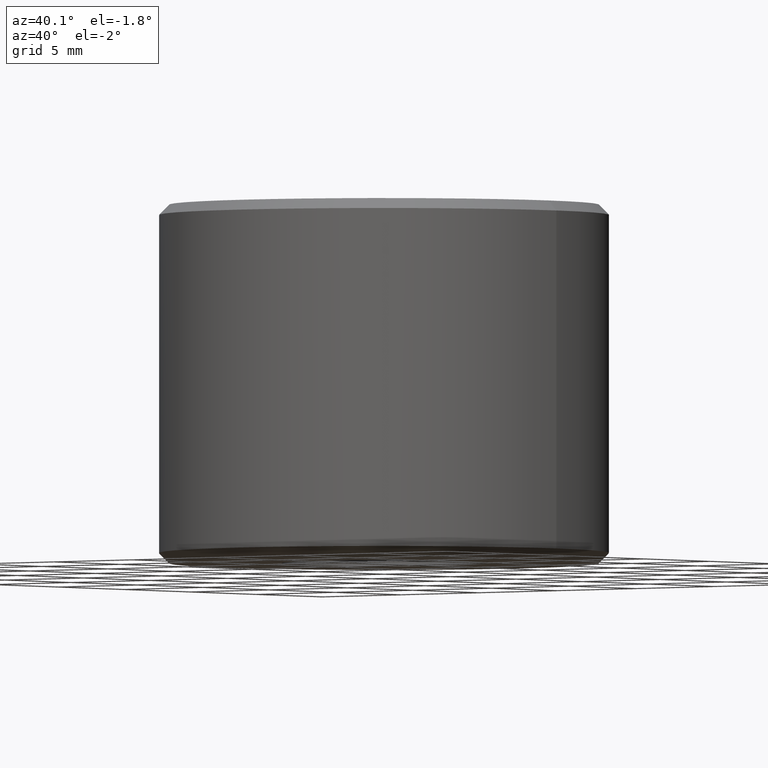
[diagram: clean part render]
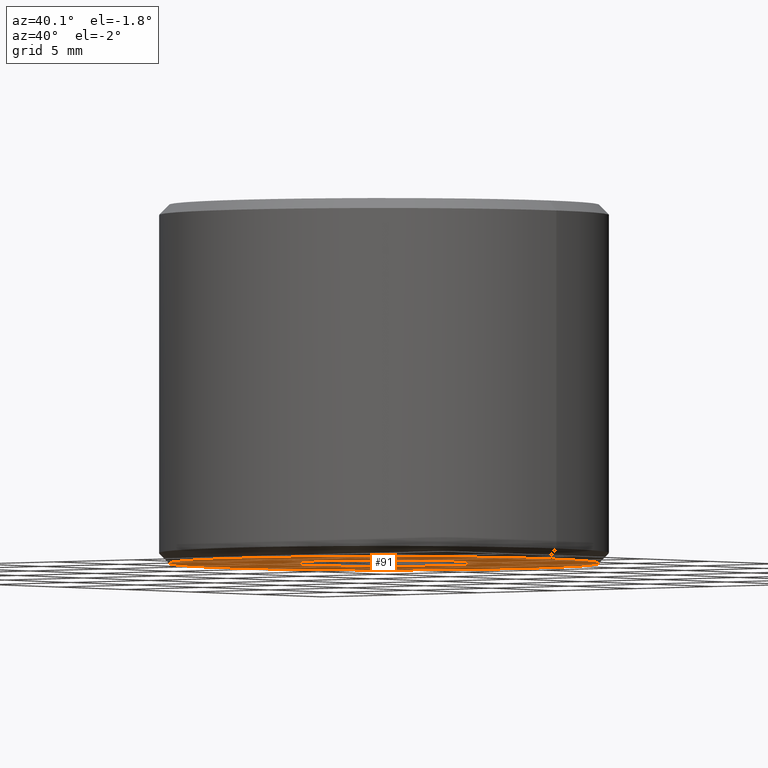
[diagram: same view with one face highlighted and labeled with its STEP entity id]
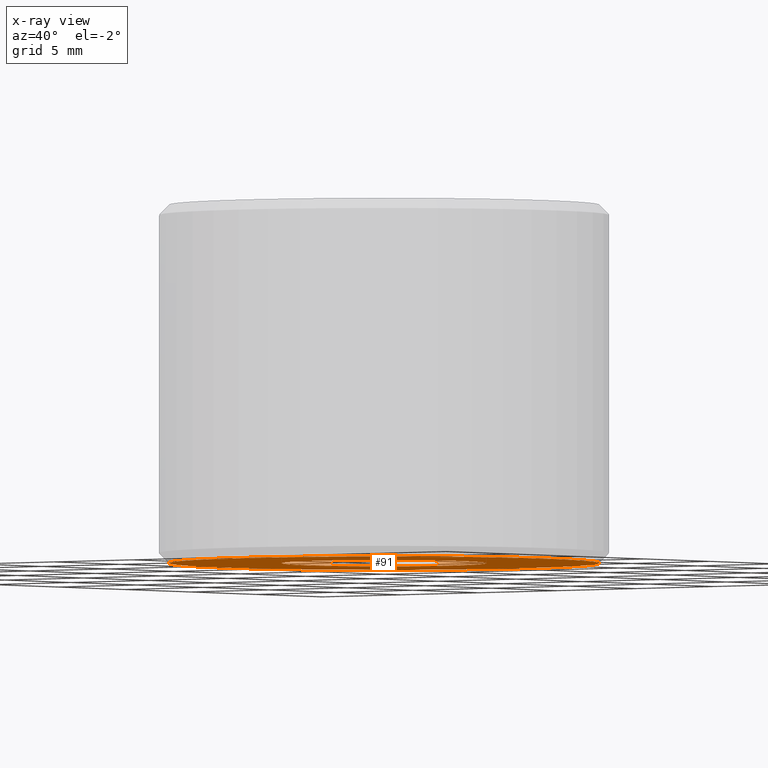
[diagram: x-ray of the same camera — body ghosted, the highlighted face saturated]
A machine part, auxiliary view. The second image highlights one B-rep face of the part: STEP entity #91.
The next image is the same camera in x-ray: the body ghosted, the highlighted face saturated — about 0% of this face is hidden behind the body in this view.
In plain terms, the highlighted planar face has unit normal (0, -0, 1).
Its self-contained STEP definition (entity closure, byte-faithful):
#10 = EDGE_CURVE ( 'NONE', #26, #116, #66, .T. ) ;
#16 = VERTEX_POINT ( 'NONE', #78 ) ;
#26 = VERTEX_POINT ( 'NONE', #342 ) ;
#27 = CARTESIAN_POINT ( 'NONE',  ( 5.000000000000000000, 0.0000000000000000000, 4.440892098500626200E-013 ) ) ;
#33 = CARTESIAN_POINT ( 'NONE',  ( -10.50000000000078700, 1.316495309083456900E-015, 4.440892098500626200E-013 ) ) ;
#47 = AXIS2_PLACEMENT_3D ( 'NONE', #176, #322, #151 ) ;
#56 = DIRECTION ( 'NONE',  ( 0.0000000000000000000, -0.0000000000000000000, 1.000000000000000000 ) ) ;
#66 = CIRCLE ( 'NONE', #47, 10.50000000000078700 ) ;
#74 = EDGE_CURVE ( 'NONE', #16, #274, #79, .T. ) ;
#78 = CARTESIAN_POINT ( 'NONE',  ( -5.000000000000000000, 6.123233995736766300E-016, 4.440892098500626200E-013 ) ) ;
#79 = CIRCLE ( 'NONE', #346, 5.000000000000000000 ) ;
#84 = CIRCLE ( 'NONE', #227, 10.50000000000078700 ) ;
#88 = CARTESIAN_POINT ( 'NONE',  ( 0.0000000000000000000, 5.000000000000000000, 4.440892098500626200E-013 ) ) ;
#91 = ADVANCED_FACE ( 'NONE', ( #107, #92 ), #337, .F. ) ;
#92 = FACE_BOUND ( 'NONE', #267, .T. ) ;
#98 = ORIENTED_EDGE ( 'NONE', *, *, #216, .T. ) ;
#107 = FACE_OUTER_BOUND ( 'NONE', #256, .T. ) ;
#108 = AXIS2_PLACEMENT_3D ( 'NONE', #88, #56, #141 ) ;
#112 = DIRECTION ( 'NONE',  ( 1.000000000000000000, 0.0000000000000000000, 0.0000000000000000000 ) ) ;
#114 = ORIENTED_EDGE ( 'NONE', *, *, #10, .F. ) ;
#116 = VERTEX_POINT ( 'NONE', #33 ) ;
#140 = AXIS2_PLACEMENT_3D ( 'NONE', #193, #163, #268 ) ;
#141 = DIRECTION ( 'NONE',  ( 1.000000000000000000, 0.0000000000000000000, 0.0000000000000000000 ) ) ;
#151 = DIRECTION ( 'NONE',  ( 1.000000000000000000, 0.0000000000000000000, 0.0000000000000000000 ) ) ;
#163 = DIRECTION ( 'NONE',  ( -0.0000000000000000000, -0.0000000000000000000, 1.000000000000000000 ) ) ;
#164 = EDGE_CURVE ( 'NONE', #116, #26, #84, .T. ) ;
#176 = CARTESIAN_POINT ( 'NONE',  ( 0.0000000000000000000, 0.0000000000000000000, 4.440892098500626200E-013 ) ) ;
#193 = CARTESIAN_POINT ( 'NONE',  ( 0.0000000000000000000, 0.0000000000000000000, 4.440892098500626200E-013 ) ) ;
#195 = CARTESIAN_POINT ( 'NONE',  ( 0.0000000000000000000, 0.0000000000000000000, 4.440892098500626200E-013 ) ) ;
#198 = ORIENTED_EDGE ( 'NONE', *, *, #74, .T. ) ;
#213 = DIRECTION ( 'NONE',  ( -0.0000000000000000000, -0.0000000000000000000, 1.000000000000000000 ) ) ;
#216 = EDGE_CURVE ( 'NONE', #274, #16, #222, .T. ) ;
#222 = CIRCLE ( 'NONE', #140, 5.000000000000000000 ) ;
#227 = AXIS2_PLACEMENT_3D ( 'NONE', #347, #213, #277 ) ;
#228 = ORIENTED_EDGE ( 'NONE', *, *, #164, .F. ) ;
#256 = EDGE_LOOP ( 'NONE', ( #114, #228 ) ) ;
#267 = EDGE_LOOP ( 'NONE', ( #98, #198 ) ) ;
#268 = DIRECTION ( 'NONE',  ( 1.000000000000000000, 0.0000000000000000000, 0.0000000000000000000 ) ) ;
#274 = VERTEX_POINT ( 'NONE', #27 ) ;
#277 = DIRECTION ( 'NONE',  ( 1.000000000000000000, 0.0000000000000000000, 0.0000000000000000000 ) ) ;
#306 = DIRECTION ( 'NONE',  ( -0.0000000000000000000, -0.0000000000000000000, 1.000000000000000000 ) ) ;
#322 = DIRECTION ( 'NONE',  ( -0.0000000000000000000, -0.0000000000000000000, 1.000000000000000000 ) ) ;
#337 = PLANE ( 'NONE',  #108 ) ;
#342 = CARTESIAN_POINT ( 'NONE',  ( 10.50000000000078700, 0.0000000000000000000, 4.440892098500626200E-013 ) ) ;
#346 = AXIS2_PLACEMENT_3D ( 'NONE', #195, #306, #112 ) ;
#347 = CARTESIAN_POINT ( 'NONE',  ( 0.0000000000000000000, 0.0000000000000000000, 4.440892098500626200E-013 ) ) ;